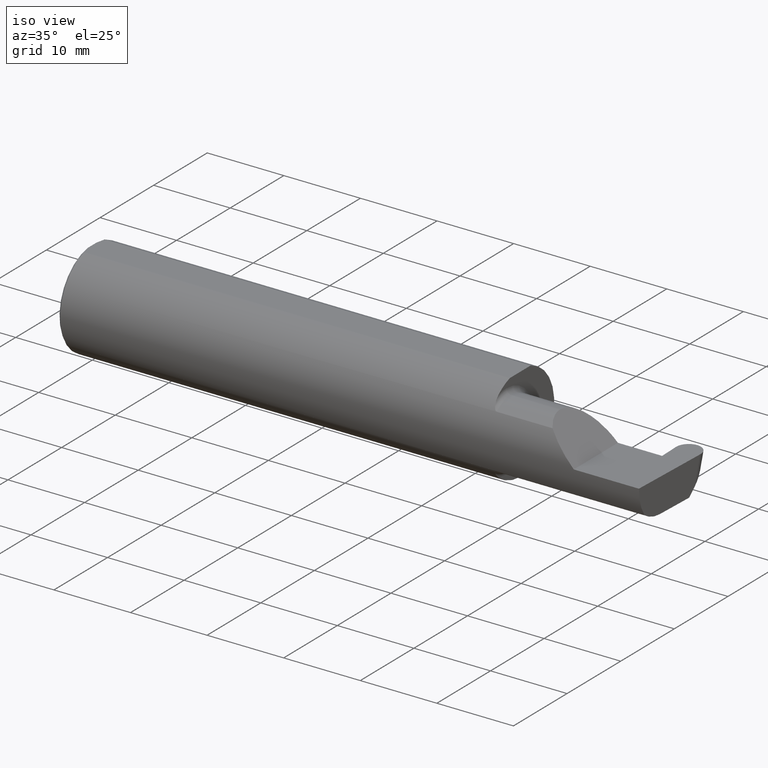
[diagram: clean part render]
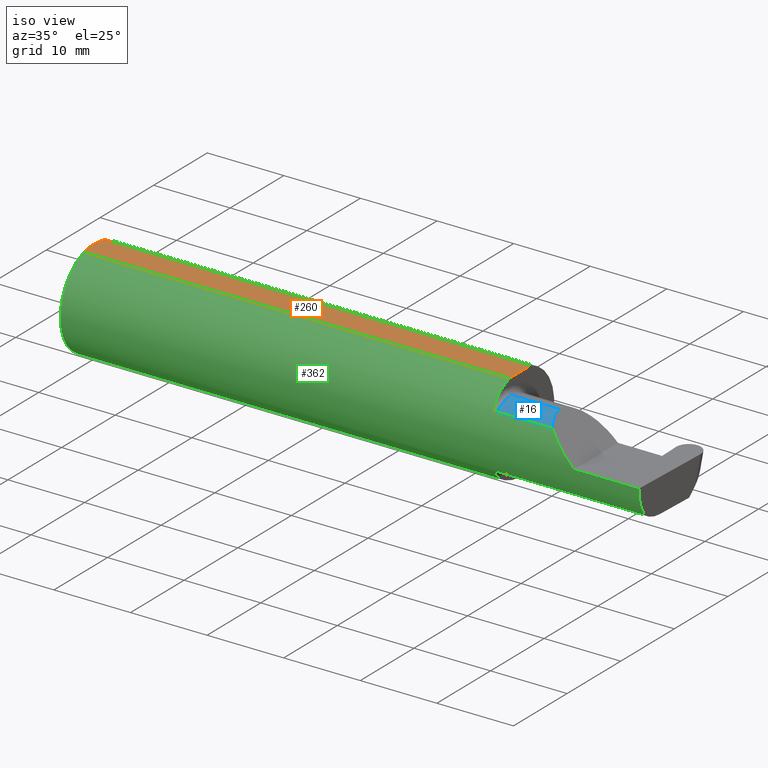
[diagram: same view with three faces highlighted in distinct colors, each labeled with its STEP entity id]
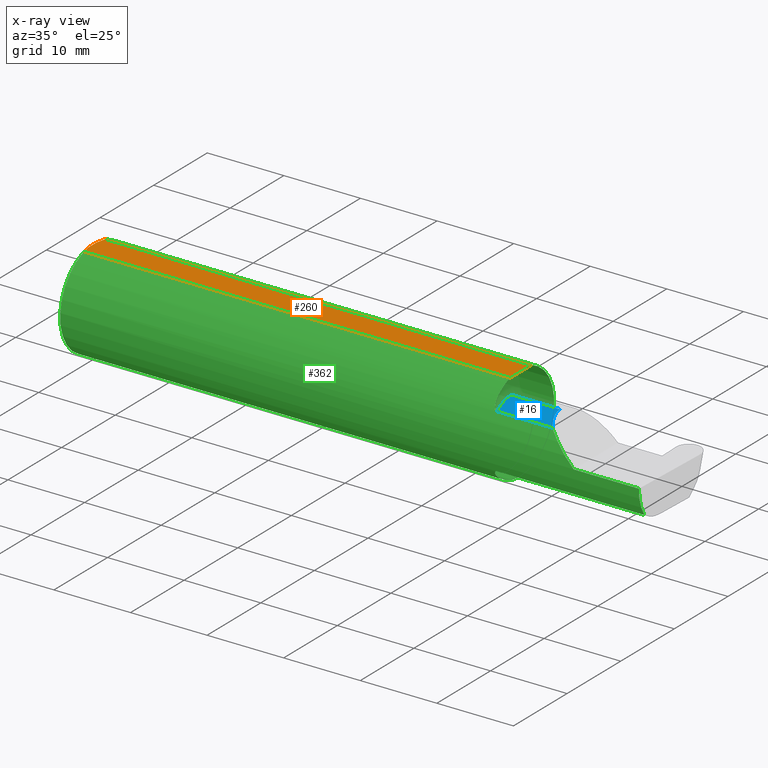
[diagram: x-ray of the same camera — body ghosted, the three highlighted faces saturated]
A machine part, iso view with three faces highlighted in distinct colors.
The next image is the same camera in x-ray (body ghosted, the three faces saturated) — at least one of them is partly hidden behind the body in this view.
Their STEP definitions:

[orange] entity #260 — the highlighted planar face has unit normal (0, 0, 1).
#27 = B_SPLINE_CURVE_WITH_KNOTS ( 'NONE', 3,
 ( #268, #516, #792, #224 ),
 .UNSPECIFIED., .F., .F.,
 ( 4, 4 ),
 ( 0.01593449416844770414, 0.01712021724825603733 ),
 .UNSPECIFIED. ) ;
#49 = CARTESIAN_POINT ( 'NONE',  ( 0.009999999999999856226, -0.07650098038587520299, 0.2378499999999998671 ) ) ;
#66 = ORIENTED_EDGE ( 'NONE', *, *, #325, .T. ) ;
#72 = DIRECTION ( 'NONE',  ( -1.000000000000000000, -0.000000000000000000, -0.000000000000000000 ) ) ;
#87 = DIRECTION ( 'NONE',  ( 0.000000000000000000, 1.000000000000000000, 0.000000000000000000 ) ) ;
#92 = CARTESIAN_POINT ( 'NONE',  ( 0.000000000000000000, -0.07650098038587520299, 0.2378499999999998671 ) ) ;
#121 = CARTESIAN_POINT ( 'NONE',  ( 0.001983148254845701515, -0.04629825796642599717, 0.2378499999999998671 ) ) ;
#138 = AXIS2_PLACEMENT_3D ( 'NONE', #400, #715, #335 ) ;
#152 = LINE ( 'NONE', #660, #797 ) ;
#164 = ORIENTED_EDGE ( 'NONE', *, *, #736, .F. ) ;
#165 = VECTOR ( 'NONE', #526, 39.37007874015748143 ) ;
#206 = CARTESIAN_POINT ( 'NONE',  ( 2.200000000000000178, 0.07650098038587520299, 0.2378499999999998671 ) ) ;
#213 = CARTESIAN_POINT ( 'NONE',  ( 0.000000000000000000, -0.03090954545120560767, 0.2378499999999998671 ) ) ;
#224 = CARTESIAN_POINT ( 'NONE',  ( 0.009999999999999856226, 0.07650098038587520299, 0.2378499999999998671 ) ) ;
#225 = PLANE ( 'NONE',  #138 ) ;
#226 = VERTEX_POINT ( 'NONE', #213 ) ;
#232 = VERTEX_POINT ( 'NONE', #530 ) ;
#260 = ADVANCED_FACE ( 'NONE', ( #454 ), #225, .T. ) ;
#266 = CARTESIAN_POINT ( 'NONE',  ( 0.009999999999999856226, -0.07650098038587520299, 0.2378499999999998671 ) ) ;
#268 = CARTESIAN_POINT ( 'NONE',  ( 0.000000000000000000, 0.03090954545120574992, 0.2378499999999998671 ) ) ;
#269 = LINE ( 'NONE', #723, #165 ) ;
#278 = VECTOR ( 'NONE', #72, 39.37007874015748143 ) ;
#291 = EDGE_CURVE ( 'NONE', #226, #232, #269, .T. ) ;
#314 = EDGE_CURVE ( 'NONE', #697, #518, #152, .T. ) ;
#325 = EDGE_CURVE ( 'NONE', #329, #697, #392, .T. ) ;
#329 = VERTEX_POINT ( 'NONE', #266 ) ;
#335 = DIRECTION ( 'NONE',  ( 1.000000000000000000, 0.000000000000000000, -0.000000000000000000 ) ) ;
#383 = CARTESIAN_POINT ( 'NONE',  ( 2.200000000000000178, -0.07650098038587527238, 0.2378499999999998671 ) ) ;
#392 = LINE ( 'NONE', #92, #586 ) ;
#400 = CARTESIAN_POINT ( 'NONE',  ( 3.501298404146671484, 0.2498499999999998500, 0.2378499999999998671 ) ) ;
#420 = ORIENTED_EDGE ( 'NONE', *, *, #291, .F. ) ;
#432 = EDGE_CURVE ( 'NONE', #329, #226, #704, .T. ) ;
#454 = FACE_OUTER_BOUND ( 'NONE', #809, .T. ) ;
#476 = ORIENTED_EDGE ( 'NONE', *, *, #432, .F. ) ;
#489 = CARTESIAN_POINT ( 'NONE',  ( 0.000000000000000000, -0.03090954545120560767, 0.2378499999999998671 ) ) ;
#492 = CARTESIAN_POINT ( 'NONE',  ( 0.000000000000000000, 0.07650098038587520299, 0.2378499999999998671 ) ) ;
#506 = ORIENTED_EDGE ( 'NONE', *, *, #314, .T. ) ;
#516 = CARTESIAN_POINT ( 'NONE',  ( 0.002005502345409059580, 0.04647171987093979412, 0.2378499999999998671 ) ) ;
#518 = VERTEX_POINT ( 'NONE', #206 ) ;
#520 = DIRECTION ( 'NONE',  ( 1.000000000000000000, 0.000000000000000000, 0.000000000000000000 ) ) ;
#526 = DIRECTION ( 'NONE',  ( -0.000000000000000000, 1.000000000000000000, -0.000000000000000000 ) ) ;
#530 = CARTESIAN_POINT ( 'NONE',  ( 0.000000000000000000, 0.03090954545120574992, 0.2378499999999998671 ) ) ;
#550 = LINE ( 'NONE', #492, #278 ) ;
#567 = ORIENTED_EDGE ( 'NONE', *, *, #608, .T. ) ;
#577 = VERTEX_POINT ( 'NONE', #624 ) ;
#586 = VECTOR ( 'NONE', #520, 39.37007874015748143 ) ;
#608 = EDGE_CURVE ( 'NONE', #518, #577, #550, .T. ) ;
#624 = CARTESIAN_POINT ( 'NONE',  ( 0.009999999999999856226, 0.07650098038587520299, 0.2378499999999998671 ) ) ;
#660 = CARTESIAN_POINT ( 'NONE',  ( 2.200000000000000178, 0.2498499999999998500, 0.2378499999999998671 ) ) ;
#678 = CARTESIAN_POINT ( 'NONE',  ( 0.005459900170181723050, -0.06167314502012866823, 0.2378499999999998671 ) ) ;
#697 = VERTEX_POINT ( 'NONE', #383 ) ;
#704 = B_SPLINE_CURVE_WITH_KNOTS ( 'NONE', 3,
 ( #49, #678, #121, #489 ),
 .UNSPECIFIED., .F., .F.,
 ( 4, 4 ),
 ( 0.01317593029100230795, 0.01435802289191462008 ),
 .UNSPECIFIED. ) ;
#715 = DIRECTION ( 'NONE',  ( 0.000000000000000000, 0.000000000000000000, 1.000000000000000000 ) ) ;
#723 = CARTESIAN_POINT ( 'NONE',  ( 0.000000000000000000, 0.2498499999999998500, 0.2378499999999998671 ) ) ;
#736 = EDGE_CURVE ( 'NONE', #232, #577, #27, .T. ) ;
#792 = CARTESIAN_POINT ( 'NONE',  ( 0.005466242398876384675, 0.06169385855649840017, 0.2378499999999998671 ) ) ;
#797 = VECTOR ( 'NONE', #87, 39.37007874015748143 ) ;
#809 = EDGE_LOOP ( 'NONE', ( #66, #506, #567, #164, #420, #476 ) ) ;

[blue] entity #16 — the highlighted cylindrical surface (partial cylindrical patch) has radius 4.445 mm, axis along (-1, -0, -0).
#7 = EDGE_CURVE ( 'NONE', #571, #720, #464, .T. ) ;
#16 = ADVANCED_FACE ( 'NONE', ( #616 ), #806, .T. ) ;
#41 = CARTESIAN_POINT ( 'NONE',  ( 2.225000000000000089, -0.1008500000000000091, 0.1750000000000000167 ) ) ;
#61 = CIRCLE ( 'NONE', #632, 0.1750000000000000167 ) ;
#78 = CARTESIAN_POINT ( 'NONE',  ( 2.225000000000000089, -0.2080850024789289987, 0.1382955322609667470 ) ) ;
#84 = EDGE_CURVE ( 'NONE', #595, #571, #691, .T. ) ;
#127 = CARTESIAN_POINT ( 'NONE',  ( 2.511704467739031887, -0.2080850024789288877, 0.1382955322609669413 ) ) ;
#129 = EDGE_CURVE ( 'NONE', #595, #502, #61, .T. ) ;
#132 = ORIENTED_EDGE ( 'NONE', *, *, #7, .T. ) ;
#139 = DIRECTION ( 'NONE',  ( 0.000000000000000000, 0.000000000000000000, 1.000000000000000000 ) ) ;
#148 = CARTESIAN_POINT ( 'NONE',  ( 2.200000000000000178, -0.1008500000000000091, 0.1750000000000000444 ) ) ;
#153 = ORIENTED_EDGE ( 'NONE', *, *, #646, .T. ) ;
#194 = VECTOR ( 'NONE', #338, 39.37007874015748143 ) ;
#236 = CARTESIAN_POINT ( 'NONE',  ( 2.511704467739031887, -0.2080850024789288877, 0.1382955322609669413 ) ) ;
#241 = VECTOR ( 'NONE', #629, 39.37007874015748143 ) ;
#249 = CARTESIAN_POINT ( 'NONE',  ( 2.487690731615565642, -0.1771157075472508391, 0.1623092683844331863 ) ) ;
#259 = CARTESIAN_POINT ( 'NONE',  ( 2.549394315000000244, -0.2080850024789289987, 0.1382955322609668025 ) ) ;
#333 = EDGE_LOOP ( 'NONE', ( #132, #153, #781, #348 ) ) ;
#338 = DIRECTION ( 'NONE',  ( -1.000000000000000000, -0.000000000000000000, -0.000000000000000000 ) ) ;
#348 = ORIENTED_EDGE ( 'NONE', *, *, #84, .T. ) ;
#416 = DIRECTION ( 'NONE',  ( -1.000000000000000000, -0.000000000000000000, -0.000000000000000000 ) ) ;
#440 = DIRECTION ( 'NONE',  ( -1.000000000000000000, -0.000000000000000000, -0.000000000000000000 ) ) ;
#453 = CARTESIAN_POINT ( 'NONE',  ( 2.474999999999998757, -0.1008500000000000091, 0.1750000000000000444 ) ) ;
#464 =( BOUNDED_CURVE ( )  B_SPLINE_CURVE ( 3, ( #236, #249, #670, #739 ),
 .UNSPECIFIED., .F., .T. ) 
 B_SPLINE_CURVE_WITH_KNOTS ( ( 4, 4 ),
 ( 5.623622464215682015, 6.283185307179586232 ),
 .UNSPECIFIED. ) 
 CURVE ( )  GEOMETRIC_REPRESENTATION_ITEM ( )  RATIONAL_B_SPLINE_CURVE ( ( 1.000000000000000000, 0.9640754331822832812, 0.9640754331822832812, 1.000000000000000000 ) ) 
 REPRESENTATION_ITEM ( '' )  );
#502 = VERTEX_POINT ( 'NONE', #41 ) ;
#571 = VERTEX_POINT ( 'NONE', #127 ) ;
#595 = VERTEX_POINT ( 'NONE', #78 ) ;
#614 = CARTESIAN_POINT ( 'NONE',  ( 2.200000000000000178, -0.1008500000000000091, 0.000000000000000000 ) ) ;
#616 = FACE_OUTER_BOUND ( 'NONE', #333, .T. ) ;
#629 = DIRECTION ( 'NONE',  ( 1.000000000000000000, 0.000000000000000000, 0.000000000000000000 ) ) ;
#632 = AXIS2_PLACEMENT_3D ( 'NONE', #756, #440, #139 ) ;
#646 = EDGE_CURVE ( 'NONE', #720, #502, #778, .T. ) ;
#670 = CARTESIAN_POINT ( 'NONE',  ( 2.474999999999998757, -0.1400387324517230747, 0.1750000000000000444 ) ) ;
#691 = LINE ( 'NONE', #259, #241 ) ;
#698 = AXIS2_PLACEMENT_3D ( 'NONE', #614, #416, #731 ) ;
#720 = VERTEX_POINT ( 'NONE', #453 ) ;
#731 = DIRECTION ( 'NONE',  ( 0.000000000000000000, 0.000000000000000000, 1.000000000000000000 ) ) ;
#739 = CARTESIAN_POINT ( 'NONE',  ( 2.474999999999998757, -0.1008500000000000091, 0.1750000000000000444 ) ) ;
#756 = CARTESIAN_POINT ( 'NONE',  ( 2.225000000000000089, -0.1008500000000000091, 0.000000000000000000 ) ) ;
#778 = LINE ( 'NONE', #148, #194 ) ;
#781 = ORIENTED_EDGE ( 'NONE', *, *, #129, .F. ) ;
#806 = CYLINDRICAL_SURFACE ( 'NONE', #698, 0.1750000000000000444 ) ;

[green] entity #362 — the highlighted cylindrical surface (partial cylindrical patch) has radius 6.3462 mm, axis along (-1, -0, -0).
#9 =( BOUNDED_CURVE ( )  B_SPLINE_CURVE ( 3, ( #690, #365, #686, #435 ),
 .UNSPECIFIED., .F., .F. ) 
 B_SPLINE_CURVE_WITH_KNOTS ( ( 4, 4 ),
 ( 6.160376845738954721, 6.746954780470613144 ),
 .UNSPECIFIED. ) 
 CURVE ( )  GEOMETRIC_REPRESENTATION_ITEM ( )  RATIONAL_B_SPLINE_CURVE ( ( 1.000000000000000000, 0.9715321379117538569, 0.9715321379117538569, 1.000000000000000000 ) ) 
 REPRESENTATION_ITEM ( '' )  );
#10 = CARTESIAN_POINT ( 'NONE',  ( 2.200000000000000178, 0.000000000000000000, 0.000000000000000000 ) ) ;
#12 = ORIENTED_EDGE ( 'NONE', *, *, #608, .F. ) ;
#14 = CARTESIAN_POINT ( 'NONE',  ( 2.208182335268384033, -0.1972192205116131969, 0.1535061413537209263 ) ) ;
#15 = ORIENTED_EDGE ( 'NONE', *, *, #325, .F. ) ;
#25 = DIRECTION ( 'NONE',  ( 1.000000000000000000, 0.000000000000000000, 0.000000000000000000 ) ) ;
#30 = ORIENTED_EDGE ( 'NONE', *, *, #521, .F. ) ;
#46 = ORIENTED_EDGE ( 'NONE', *, *, #145, .F. ) ;
#55 = EDGE_CURVE ( 'NONE', #285, #394, #207, .T. ) ;
#65 = CARTESIAN_POINT ( 'NONE',  ( 2.983929579294953616, -0.2080850024789289987, -0.1382955322609668025 ) ) ;
#68 = CARTESIAN_POINT ( 'NONE',  ( 2.549394315000000244, -0.2080850024789289987, -0.1382955322609668025 ) ) ;
#72 = DIRECTION ( 'NONE',  ( -1.000000000000000000, -0.000000000000000000, -0.000000000000000000 ) ) ;
#78 = CARTESIAN_POINT ( 'NONE',  ( 2.225000000000000089, -0.2080850024789289987, 0.1382955322609667470 ) ) ;
#82 = CARTESIAN_POINT ( 'NONE',  ( 2.223318040126429196, -0.2080850024789291652, -0.1382955322609666915 ) ) ;
#84 = EDGE_CURVE ( 'NONE', #595, #571, #691, .T. ) ;
#88 = AXIS2_PLACEMENT_3D ( 'NONE', #412, #415, #422 ) ;
#91 = CARTESIAN_POINT ( 'NONE',  ( 2.218863362722770738, -0.2068301641248770639, -0.1401678546132360259 ) ) ;
#92 = CARTESIAN_POINT ( 'NONE',  ( 0.000000000000000000, -0.07650098038587520299, 0.2378499999999998671 ) ) ;
#97 = VERTEX_POINT ( 'NONE', #637 ) ;
#114 = AXIS2_PLACEMENT_3D ( 'NONE', #783, #210, #450 ) ;
#127 = CARTESIAN_POINT ( 'NONE',  ( 2.511704467739031887, -0.2080850024789288877, 0.1382955322609669413 ) ) ;
#134 = DIRECTION ( 'NONE',  ( -1.000000000000000000, -0.000000000000000000, -0.000000000000000000 ) ) ;
#135 = VERTEX_POINT ( 'NONE', #65 ) ;
#142 = ORIENTED_EDGE ( 'NONE', *, *, #558, .T. ) ;
#145 = EDGE_CURVE ( 'NONE', #324, #595, #346, .T. ) ;
#146 = CARTESIAN_POINT ( 'NONE',  ( 2.225000000000000089, -0.2080850024789289987, 0.1382955322609667470 ) ) ;
#155 = DIRECTION ( 'NONE',  ( 1.000000000000000000, 0.000000000000000000, 0.000000000000000000 ) ) ;
#161 = CARTESIAN_POINT ( 'NONE',  ( 2.206147634408388125, -0.1932733126899461307, -0.1584637047788196584 ) ) ;
#163 = CARTESIAN_POINT ( 'NONE',  ( 2.225000000000000089, -0.2080850024789289709, -0.1382955322609668025 ) ) ;
#168 = VECTOR ( 'NONE', #134, 39.37007874015748143 ) ;
#173 = CARTESIAN_POINT ( 'NONE',  ( 2.217611663768900065, -0.2061921161193829566, -0.1411075319999376687 ) ) ;
#174 = FACE_OUTER_BOUND ( 'NONE', #789, .T. ) ;
#196 = CARTESIAN_POINT ( 'NONE',  ( 2.223329956043142541, -0.2080850024798590880, 0.1382955322595675052 ) ) ;
#199 = CARTESIAN_POINT ( 'NONE',  ( 2.200367168219774072, -0.1713400252854603845, 0.1819601557798505576 ) ) ;
#200 = ORIENTED_EDGE ( 'NONE', *, *, #596, .T. ) ;
#202 = LINE ( 'NONE', #68, #672 ) ;
#205 = EDGE_CURVE ( 'NONE', #697, #324, #456, .T. ) ;
#206 = CARTESIAN_POINT ( 'NONE',  ( 2.200000000000000178, 0.07650098038587520299, 0.2378499999999998671 ) ) ;
#207 = LINE ( 'NONE', #687, #168 ) ;
#210 = DIRECTION ( 'NONE',  ( 1.000000000000000000, 0.000000000000000000, 0.000000000000000000 ) ) ;
#241 = VECTOR ( 'NONE', #629, 39.37007874015748143 ) ;
#242 = CARTESIAN_POINT ( 'NONE',  ( 2.650000000000000355, -0.2498499999999999610, 4.286263797015729199E-17 ) ) ;
#258 = DIRECTION ( 'NONE',  ( 1.000000000000000000, 0.000000000000000000, 0.000000000000000000 ) ) ;
#259 = CARTESIAN_POINT ( 'NONE',  ( 2.549394315000000244, -0.2080850024789289987, 0.1382955322609668025 ) ) ;
#263 = CARTESIAN_POINT ( 'NONE',  ( 2.212616400345756240, -0.2024684335577103256, 0.1464246884265637816 ) ) ;
#266 = CARTESIAN_POINT ( 'NONE',  ( 0.009999999999999856226, -0.07650098038587520299, 0.2378499999999998671 ) ) ;
#267 = ORIENTED_EDGE ( 'NONE', *, *, #724, .T. ) ;
#274 = DIRECTION ( 'NONE',  ( 0.000000000000000000, 0.000000000000000000, -1.000000000000000000 ) ) ;
#278 = VECTOR ( 'NONE', #72, 39.37007874015748143 ) ;
#285 = VERTEX_POINT ( 'NONE', #347 ) ;
#290 = CARTESIAN_POINT ( 'NONE',  ( 2.214302603425052141, -0.2041009206016212996, -0.1441313430770039816 ) ) ;
#299 = VERTEX_POINT ( 'NONE', #163 ) ;
#304 = CARTESIAN_POINT ( 'NONE',  ( 2.201849548162864156, -0.1805300287242674884, 0.1728462070311780341 ) ) ;
#307 = DIRECTION ( 'NONE',  ( -1.000000000000000000, -0.000000000000000000, -0.000000000000000000 ) ) ;
#318 = CARTESIAN_POINT ( 'NONE',  ( 2.650000000000000355, -0.2498499999999999610, 4.286263797015729199E-17 ) ) ;
#319 = CARTESIAN_POINT ( 'NONE',  ( 2.206159563508734323, -0.1933019864360849549, 0.1584298865564830461 ) ) ;
#324 = VERTEX_POINT ( 'NONE', #594 ) ;
#325 = EDGE_CURVE ( 'NONE', #329, #697, #392, .T. ) ;
#329 = VERTEX_POINT ( 'NONE', #266 ) ;
#340 = EDGE_CURVE ( 'NONE', #329, #97, #428, .T. ) ;
#346 = B_SPLINE_CURVE_WITH_KNOTS ( 'NONE', 3,
 ( #696, #762, #199, #304, #555, #319, #14, #263, #770, #446, #821, #702, #196, #146 ),
 .UNSPECIFIED., .F., .F.,
 ( 4, 2, 2, 2, 2, 2, 4 ),
 ( 0.0003834465838148161127, 0.0008781406165086606559, 0.001372834649202505199, 0.001867528681896349959, 0.002114875698243277001, 0.002238549206416748111, 0.002362222714590218355 ),
 .UNSPECIFIED. ) ;
#347 = CARTESIAN_POINT ( 'NONE',  ( 2.984886542352623628, -0.2498499999999999888, 0.000000000000000000 ) ) ;
#355 = CARTESIAN_POINT ( 'NONE',  ( 2.199999999999999289, -0.1716188362992555339, -0.1820560320165478807 ) ) ;
#362 = ADVANCED_FACE ( 'NONE', ( #174 ), #478, .T. ) ;
#365 = CARTESIAN_POINT ( 'NONE',  ( 2.983692505346974944, -0.2355204011147992438, -0.09701513151466761853 ) ) ;
#379 = CARTESIAN_POINT ( 'NONE',  ( 2.200000000000000178, -0.1616050818046604609, -0.1905487340154979614 ) ) ;
#383 = CARTESIAN_POINT ( 'NONE',  ( 2.200000000000000178, -0.07650098038587527238, 0.2378499999999998671 ) ) ;
#392 = LINE ( 'NONE', #92, #586 ) ;
#394 = VERTEX_POINT ( 'NONE', #242 ) ;
#401 = ORIENTED_EDGE ( 'NONE', *, *, #752, .F. ) ;
#403 = CIRCLE ( 'NONE', #758, 0.2498499999999999888 ) ;
#409 = ORIENTED_EDGE ( 'NONE', *, *, #55, .T. ) ;
#412 = CARTESIAN_POINT ( 'NONE',  ( 0.000000000000000000, 0.000000000000000000, 0.000000000000000000 ) ) ;
#415 = DIRECTION ( 'NONE',  ( -1.000000000000000000, -0.000000000000000000, -0.000000000000000000 ) ) ;
#418 = B_SPLINE_CURVE_WITH_KNOTS ( 'NONE', 3,
 ( #640, #82, #647, #91, #173, #290, #532, #798, #161, #741, #355, #804 ),
 .UNSPECIFIED., .F., .F.,
 ( 4, 2, 2, 2, 2, 4 ),
 ( 1.964491429042083594E-07, 0.0001260981470478291519, 0.0002519998449527541240, 0.0005038032407626172413, 0.001007410032382342934, 0.002014623615621803643 ),
 .UNSPECIFIED. ) ;
#422 = DIRECTION ( 'NONE',  ( 0.000000000000000000, 0.000000000000000000, 1.000000000000000000 ) ) ;
#428 = CIRCLE ( 'NONE', #511, 0.2498499999999999888 ) ;
#429 = AXIS2_PLACEMENT_3D ( 'NONE', #10, #258, #439 ) ;
#430 = CARTESIAN_POINT ( 'NONE',  ( 2.511704467739031887, -0.2080850024789288877, 0.1382955322609669413 ) ) ;
#435 = CARTESIAN_POINT ( 'NONE',  ( 2.984886542352623628, -0.2498499999999999888, 0.000000000000000000 ) ) ;
#439 = DIRECTION ( 'NONE',  ( 0.000000000000000000, 0.000000000000000000, -1.000000000000000000 ) ) ;
#445 = CARTESIAN_POINT ( 'NONE',  ( 2.600434159100402987, -0.2498499999999999610, 0.04956584089959713973 ) ) ;
#446 = CARTESIAN_POINT ( 'NONE',  ( 2.217647060162628136, -0.2062109266231182125, 0.1410799729252290580 ) ) ;
#450 = DIRECTION ( 'NONE',  ( 0.000000000000000000, 0.000000000000000000, -1.000000000000000000 ) ) ;
#456 = CIRCLE ( 'NONE', #114, 0.2498499999999999888 ) ;
#472 = ORIENTED_EDGE ( 'NONE', *, *, #84, .F. ) ;
#478 = CYLINDRICAL_SURFACE ( 'NONE', #88, 0.2498499999999999888 ) ;
#479 =( BOUNDED_CURVE ( )  B_SPLINE_CURVE ( 3, ( #318, #445, #500, #430 ),
 .UNSPECIFIED., .F., .T. ) 
 B_SPLINE_CURVE_WITH_KNOTS ( ( 4, 4 ),
 ( 4.712388980384689674, 5.298966915116348986 ),
 .UNSPECIFIED. ) 
 CURVE ( )  GEOMETRIC_REPRESENTATION_ITEM ( )  RATIONAL_B_SPLINE_CURVE ( ( 1.000000000000000000, 0.9715321379117536349, 0.9715321379117536349, 1.000000000000000000 ) ) 
 REPRESENTATION_ITEM ( '' )  );
#485 = CIRCLE ( 'NONE', #429, 0.2498499999999999888 ) ;
#492 = CARTESIAN_POINT ( 'NONE',  ( 0.000000000000000000, 0.07650098038587520299, 0.2378499999999998671 ) ) ;
#500 = CARTESIAN_POINT ( 'NONE',  ( 2.552984868485331571, -0.2355204011147991605, 0.09701513151466779894 ) ) ;
#509 = VERTEX_POINT ( 'NONE', #379 ) ;
#511 = AXIS2_PLACEMENT_3D ( 'NONE', #576, #25, #580 ) ;
#518 = VERTEX_POINT ( 'NONE', #206 ) ;
#520 = DIRECTION ( 'NONE',  ( 1.000000000000000000, 0.000000000000000000, 0.000000000000000000 ) ) ;
#521 = EDGE_CURVE ( 'NONE', #135, #299, #202, .T. ) ;
#532 = CARTESIAN_POINT ( 'NONE',  ( 2.212579853086619419, -0.2024300470081735470, -0.1464774911482684683 ) ) ;
#550 = LINE ( 'NONE', #492, #278 ) ;
#555 = CARTESIAN_POINT ( 'NONE',  ( 2.202968662030529323, -0.1849684355203378983, 0.1680843977756267815 ) ) ;
#558 = EDGE_CURVE ( 'NONE', #394, #571, #479, .T. ) ;
#571 = VERTEX_POINT ( 'NONE', #127 ) ;
#575 = CARTESIAN_POINT ( 'NONE',  ( 0.009999999999999856226, 0.000000000000000000, 0.000000000000000000 ) ) ;
#576 = CARTESIAN_POINT ( 'NONE',  ( 0.009999999999999856226, 0.000000000000000000, 0.000000000000000000 ) ) ;
#577 = VERTEX_POINT ( 'NONE', #624 ) ;
#580 = DIRECTION ( 'NONE',  ( 0.000000000000000000, 0.000000000000000000, -1.000000000000000000 ) ) ;
#586 = VECTOR ( 'NONE', #520, 39.37007874015748143 ) ;
#592 = ORIENTED_EDGE ( 'NONE', *, *, #340, .T. ) ;
#594 = CARTESIAN_POINT ( 'NONE',  ( 2.200000000000000178, -0.1616050818046604609, 0.1905487340154979614 ) ) ;
#595 = VERTEX_POINT ( 'NONE', #78 ) ;
#596 = EDGE_CURVE ( 'NONE', #135, #285, #9, .T. ) ;
#600 = ORIENTED_EDGE ( 'NONE', *, *, #205, .F. ) ;
#608 = EDGE_CURVE ( 'NONE', #518, #577, #550, .T. ) ;
#622 = EDGE_CURVE ( 'NONE', #509, #518, #485, .T. ) ;
#624 = CARTESIAN_POINT ( 'NONE',  ( 0.009999999999999856226, 0.07650098038587520299, 0.2378499999999998671 ) ) ;
#629 = DIRECTION ( 'NONE',  ( 1.000000000000000000, 0.000000000000000000, 0.000000000000000000 ) ) ;
#637 = CARTESIAN_POINT ( 'NONE',  ( 0.009999999999999856226, 0.000000000000000000, -0.2498499999999999888 ) ) ;
#640 = CARTESIAN_POINT ( 'NONE',  ( 2.225000000000000089, -0.2080850024789289709, -0.1382955322609668025 ) ) ;
#647 = CARTESIAN_POINT ( 'NONE',  ( 2.221700027347579098, -0.2077785947292768165, -0.1387580622202825575 ) ) ;
#672 = VECTOR ( 'NONE', #307, 39.37007874015748143 ) ;
#686 = CARTESIAN_POINT ( 'NONE',  ( 2.984020840019027343, -0.2498499999999999888, -0.04956584089959698014 ) ) ;
#687 = CARTESIAN_POINT ( 'NONE',  ( 4.499279347985562423E-32, -0.2498499999999999610, 3.673940397442054938E-16 ) ) ;
#690 = CARTESIAN_POINT ( 'NONE',  ( 2.983929579294953616, -0.2080850024789289987, -0.1382955322609668025 ) ) ;
#691 = LINE ( 'NONE', #259, #241 ) ;
#696 = CARTESIAN_POINT ( 'NONE',  ( 2.200000000000000178, -0.1616050818046604609, 0.1905487340154979614 ) ) ;
#697 = VERTEX_POINT ( 'NONE', #383 ) ;
#702 = CARTESIAN_POINT ( 'NONE',  ( 2.221718393013768722, -0.2077830475237241459, 0.1387513848711937059 ) ) ;
#724 = EDGE_CURVE ( 'NONE', #97, #577, #403, .T. ) ;
#741 = CARTESIAN_POINT ( 'NONE',  ( 2.201385488563270432, -0.1808287530430325862, -0.1728790649396287071 ) ) ;
#752 = EDGE_CURVE ( 'NONE', #299, #509, #418, .T. ) ;
#758 = AXIS2_PLACEMENT_3D ( 'NONE', #575, #155, #274 ) ;
#762 = CARTESIAN_POINT ( 'NONE',  ( 2.199999999999999734, -0.1665641037263010105, 0.1863429692936361681 ) ) ;
#764 = ORIENTED_EDGE ( 'NONE', *, *, #622, .F. ) ;
#770 = CARTESIAN_POINT ( 'NONE',  ( 2.214343523383978773, -0.2041337200786083605, 0.1440846171672512110 ) ) ;
#783 = CARTESIAN_POINT ( 'NONE',  ( 2.200000000000000178, 0.000000000000000000, 0.000000000000000000 ) ) ;
#789 = EDGE_LOOP ( 'NONE', ( #30, #200, #409, #142, #472, #46, #600, #15, #592, #267, #12, #764, #401 ) ) ;
#798 = CARTESIAN_POINT ( 'NONE',  ( 2.208176740666625282, -0.1972027065478073327, -0.1535263573771913359 ) ) ;
#804 = CARTESIAN_POINT ( 'NONE',  ( 2.200000000000000178, -0.1616050818046604609, -0.1905487340154979614 ) ) ;
#821 = CARTESIAN_POINT ( 'NONE',  ( 2.218876997637615034, -0.2068363917296600629, 0.1401586554522229466 ) ) ;